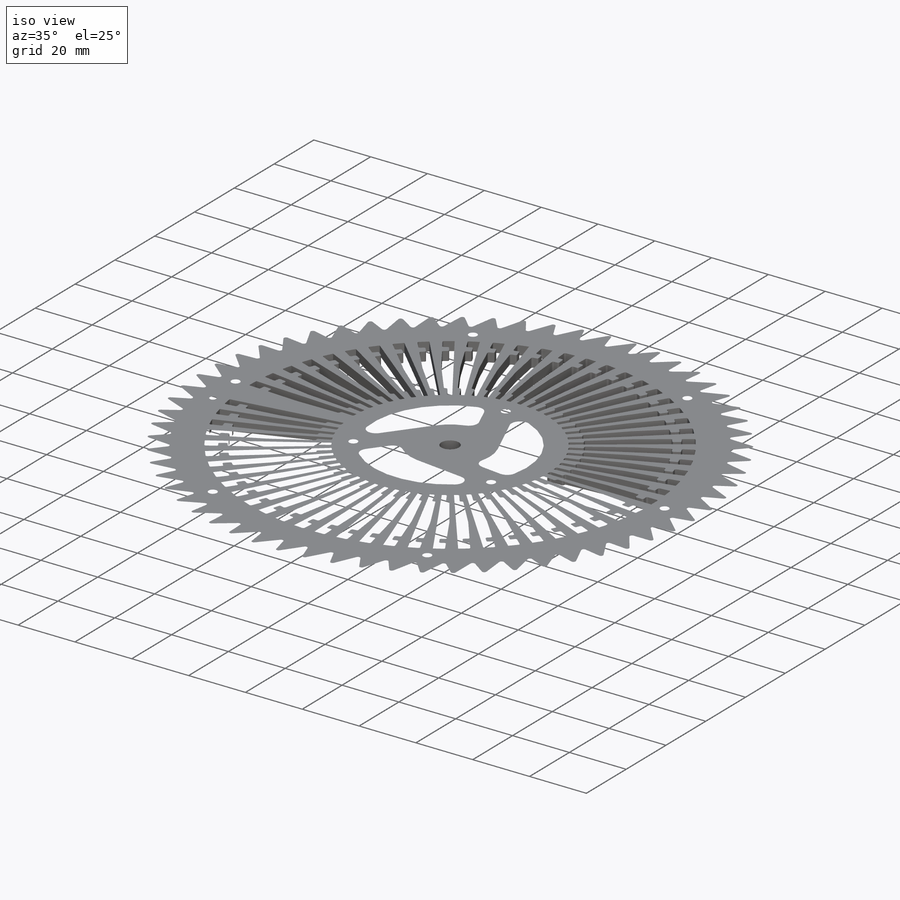
[diagram: iso view]
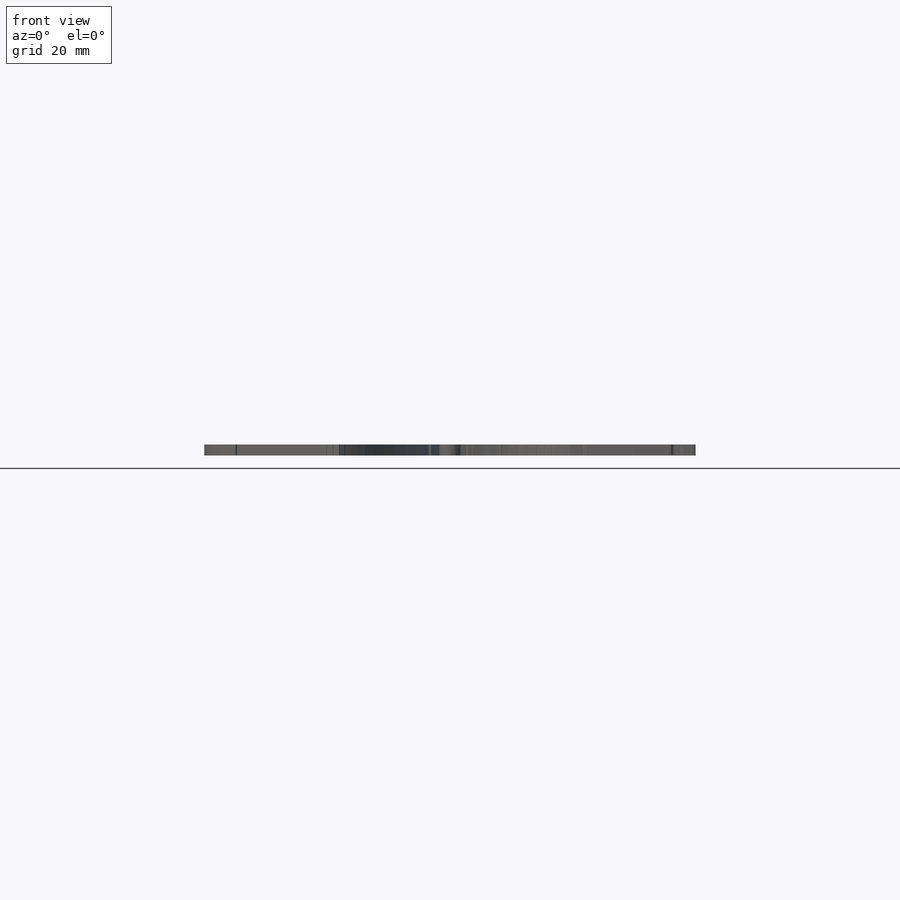
[diagram: front view]
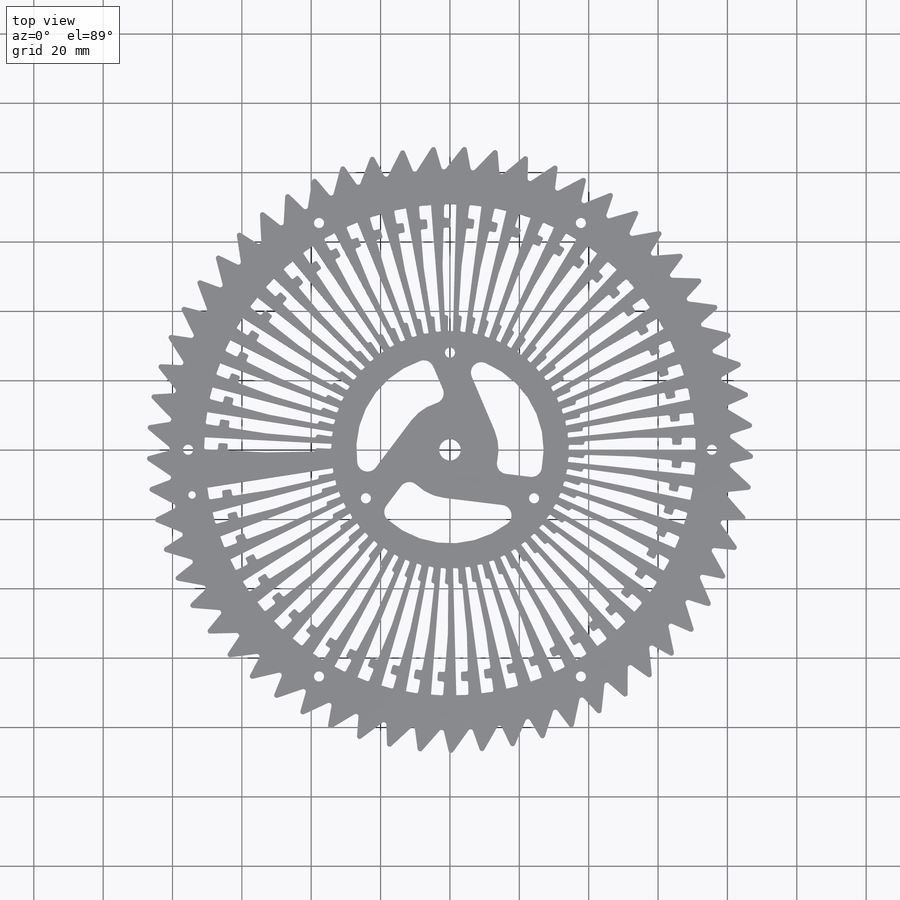
[diagram: top view]
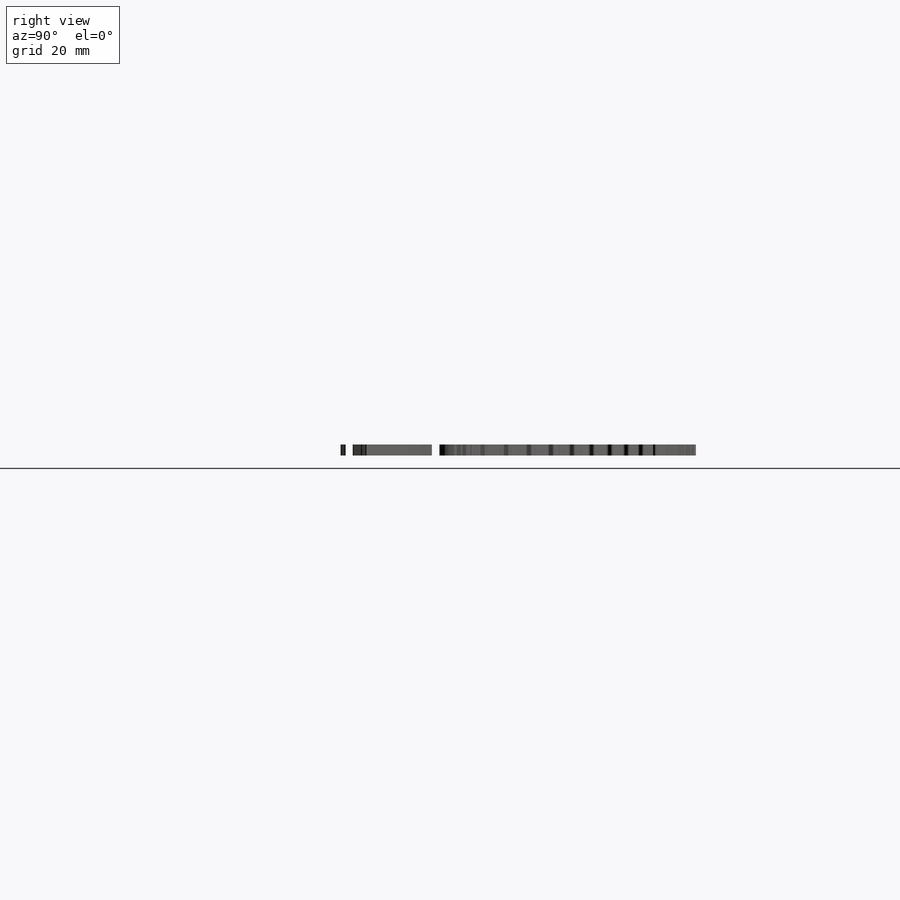
[diagram: right view]
SOLIDWORKS PART (.sldprt)
format: sldprt  version: not decoded by parser v0  size: 9,276,416 bytes
history: native  units: mm
features: sketch x7, cut_extrude x5, pattern_circular x4, extrude x2, fillet x2, material x1, chamfer x1 (+16 scaffold rows collapsed)
feature tree (38):
  scaffold x16  (default folders/planes/origin — collapsed)
  material  "Delrin 2700 NC010, Low Viscosity Acetal Copolymer (SS)"
  sketch  "Sketch1"  dims[D1=160.0mm D2=6.2mm]
  extrude  "Boss-Extrude1"  Depth=3.175mm
  sketch  "Sketch2"  dims[c1.D1=105.0mm c1.D16=0.5mm c1.D17=0.5mm c1.D2=36.1mm c1.D3=1.0mm c1.D4=5.0mm c1.D5=2.0mm c1.D6=18.5mm c1.D7=3.0mm c1.D8=0.25mm c1.D9=0.25mm c1.D10=0.5mm c1.D11=2.0mm c1.D12=3.75mm c1.D13=1.5mm c1.D14=6.5mm c2.D11=4.25mm c2.D15=1.0mm c2.D18=~11.682517mm c3.D18=90.0deg]
  cut_extrude  "Cut-Extrude1"  [1 undecoded]
  pattern_circular  "CirPattern1"  Count=61 Angle=360deg
  sketch  "Sketch3"  dims[c1.D1=2.9mm c1.D2=75.5mm c1.D3=~9.464755mm c2.D3=60.0deg]
  cut_extrude  "Cut-Extrude2"  [1 undecoded]
  pattern_circular  "CirPattern2"  Count=6 Angle=360deg
  sketch  "Sketch9"  dims[c1.D1=2.15mm c1.D2=75.5mm c2.D2=~9.95082deg]
  cut_extrude  "Cut-Extrude6"  [1 undecoded]
  sketch  "Sketch4"  dims[c1.D1=~27.087044mm c2.D1=30.0deg c2.D2=28.0mm]
  cut_extrude  "Cut-Extrude3"  [1 undecoded]
  sketch  "Sketch6"  dims[c1.D3=14.0mm c1.D4=6.0mm c1.D5=27.0mm c1.D6=3.0mm c1.D1=1.5mm c1.D2=~11.555762mm c2.D2=120.0deg c2.D1=~24.310557mm c3.D1=23.0deg c3.D4=~26.311393mm c4.D4=120.0deg c4.D6=6.0mm]
  cut_extrude  "Cut-Extrude4"  [1 undecoded]
  pattern_circular  "CirPattern3"  Count=3 Angle=360deg
  fillet  "Fillet1"  Radius=3mm
  chamfer  "Chamfer1"  Distance=2.1mm Angle=41deg
  sketch  "Sketch7"  dims[c1.D2=1.0mm c1.D1=80.0mm c2.D1=~5.901639deg c2.D2=~0.850234mm c3.D2=15.0deg c3.D3=~8.362277mm c4.D3=5.0deg c4.D4=~3.095175mm c5.D4=20.0deg c5.D5=~6.967833mm c6.D5=45.0deg c6.D6=~6.677771mm c7.D6=~36.676455deg c8.D6=~0.525535mm c9.D6=15.0deg c9.D7=~6.739524mm c10.D7=40.0deg]
  extrude  "Boss-Extrude2"  [1 undecoded]
  pattern_circular  "CirPattern4"  Count=61 Angle=360deg
  fillet  "Fillet2"  Radius=0.75mm
decode coverage: 15 of 21 modeling features carry decoded parameters
note: ~ marks probable driven/reference dimensions
note: 6 parameter values undecoded
summary: no parameter record found for 6 features
note: suppression state not decoded; provenance and decode notes live in map.json
